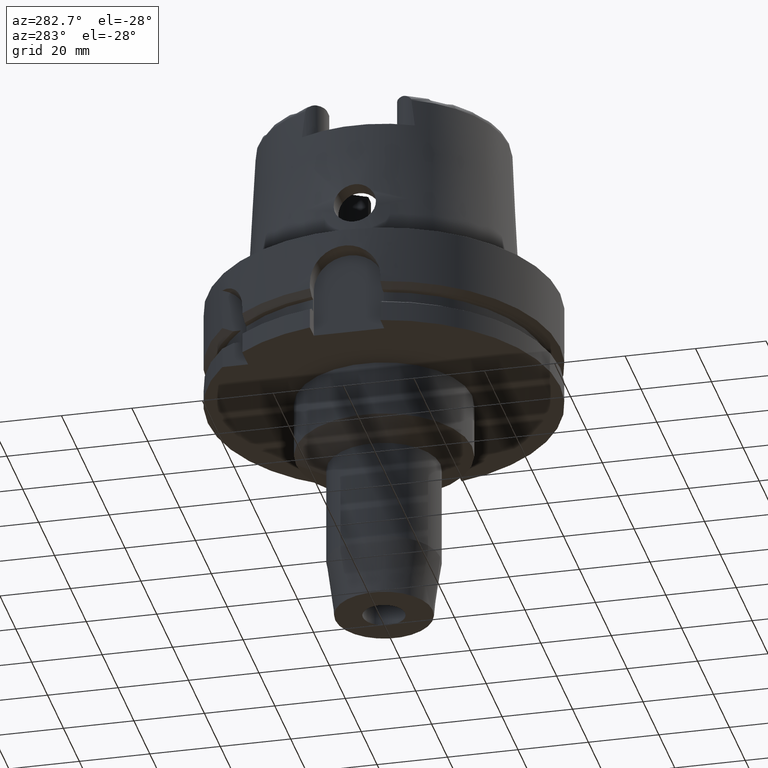
[diagram: clean part render]
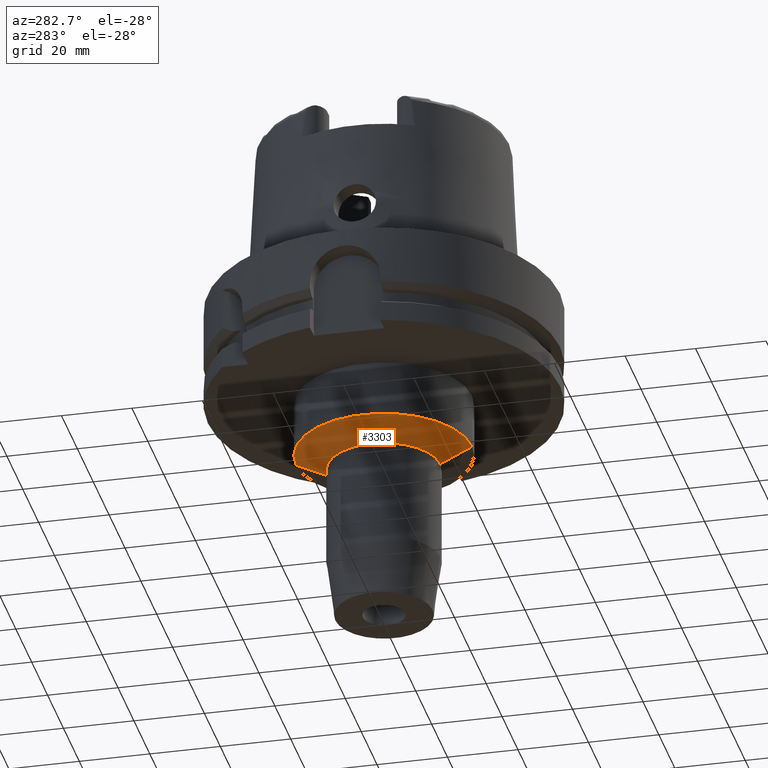
[diagram: same view with one face highlighted and labeled with its STEP entity id]
A machine part, auxiliary view. The second image highlights one B-rep face of the part: STEP entity #3303.
In plain terms, the highlighted conical surface has half-angle 63.734 deg.
Its self-contained STEP definition (entity closure, byte-faithful):
#1093=DIRECTION('',(0.E0,-8.967491962621E-1,-4.425391270875E-1));
#1094=VECTOR('',#1093,1.003625098022E1);
#1095=CARTESIAN_POINT('',(0.E0,2.5E1,-4.5E1));
#1096=LINE('',#1095,#1094);
#1116=CARTESIAN_POINT('',(0.E0,0.E0,-4.5E1));
#1117=DIRECTION('',(0.E0,0.E0,1.E0));
#1118=DIRECTION('',(0.E0,1.E0,0.E0));
#1119=AXIS2_PLACEMENT_3D('',#1116,#1117,#1118);
#1124=DIRECTION('',(0.E0,8.967491962621E-1,-4.425391270875E-1));
#1125=VECTOR('',#1124,1.003625098022E1);
#1126=CARTESIAN_POINT('',(0.E0,-2.5E1,-4.5E1));
#1127=LINE('',#1126,#1125);
#1131=CARTESIAN_POINT('',(0.E0,0.E0,-4.944143374802E1));
#1132=DIRECTION('',(0.E0,0.E0,-1.E0));
#1133=DIRECTION('',(0.E0,-1.E0,0.E0));
#1134=AXIS2_PLACEMENT_3D('',#1131,#1132,#1133);
#2337=CARTESIAN_POINT('',(0.E0,1.6E1,-4.944143374802E1));
#2338=VERTEX_POINT('',#2337);
#2339=CARTESIAN_POINT('',(0.E0,-1.6E1,-4.944143374802E1));
#2340=VERTEX_POINT('',#2339);
#2341=CARTESIAN_POINT('',(0.E0,2.5E1,-4.5E1));
#2342=VERTEX_POINT('',#2341);
#2343=CARTESIAN_POINT('',(0.E0,-2.5E1,-4.5E1));
#2344=VERTEX_POINT('',#2343);
#3291=CARTESIAN_POINT('',(0.E0,0.E0,-4.722071687401E1));
#3292=DIRECTION('',(0.E0,0.E0,1.E0));
#3293=DIRECTION('',(0.E0,1.E0,0.E0));
#3294=AXIS2_PLACEMENT_3D('',#3291,#3292,#3293);
#3295=CONICAL_SURFACE('',#3294,2.05E1,6.3734E1);
#3296=ORIENTED_EDGE('',*,*,#3281,.F.);
#3298=ORIENTED_EDGE('',*,*,#3297,.T.);
#3299=ORIENTED_EDGE('',*,*,#3284,.T.);
#3300=ORIENTED_EDGE('',*,*,#3255,.T.);
#3301=EDGE_LOOP('',(#3296,#3298,#3299,#3300));
#3302=FACE_OUTER_BOUND('',#3301,.F.);
#1120=CIRCLE('',#1119,2.5E1);
#1135=CIRCLE('',#1134,1.6E1);
#3255=EDGE_CURVE('',#2340,#2338,#1135,.T.);
#3281=EDGE_CURVE('',#2342,#2338,#1096,.T.);
#3284=EDGE_CURVE('',#2344,#2340,#1127,.T.);
#3297=EDGE_CURVE('',#2342,#2344,#1120,.T.);
#3303=ADVANCED_FACE('',(#3302),#3295,.T.);